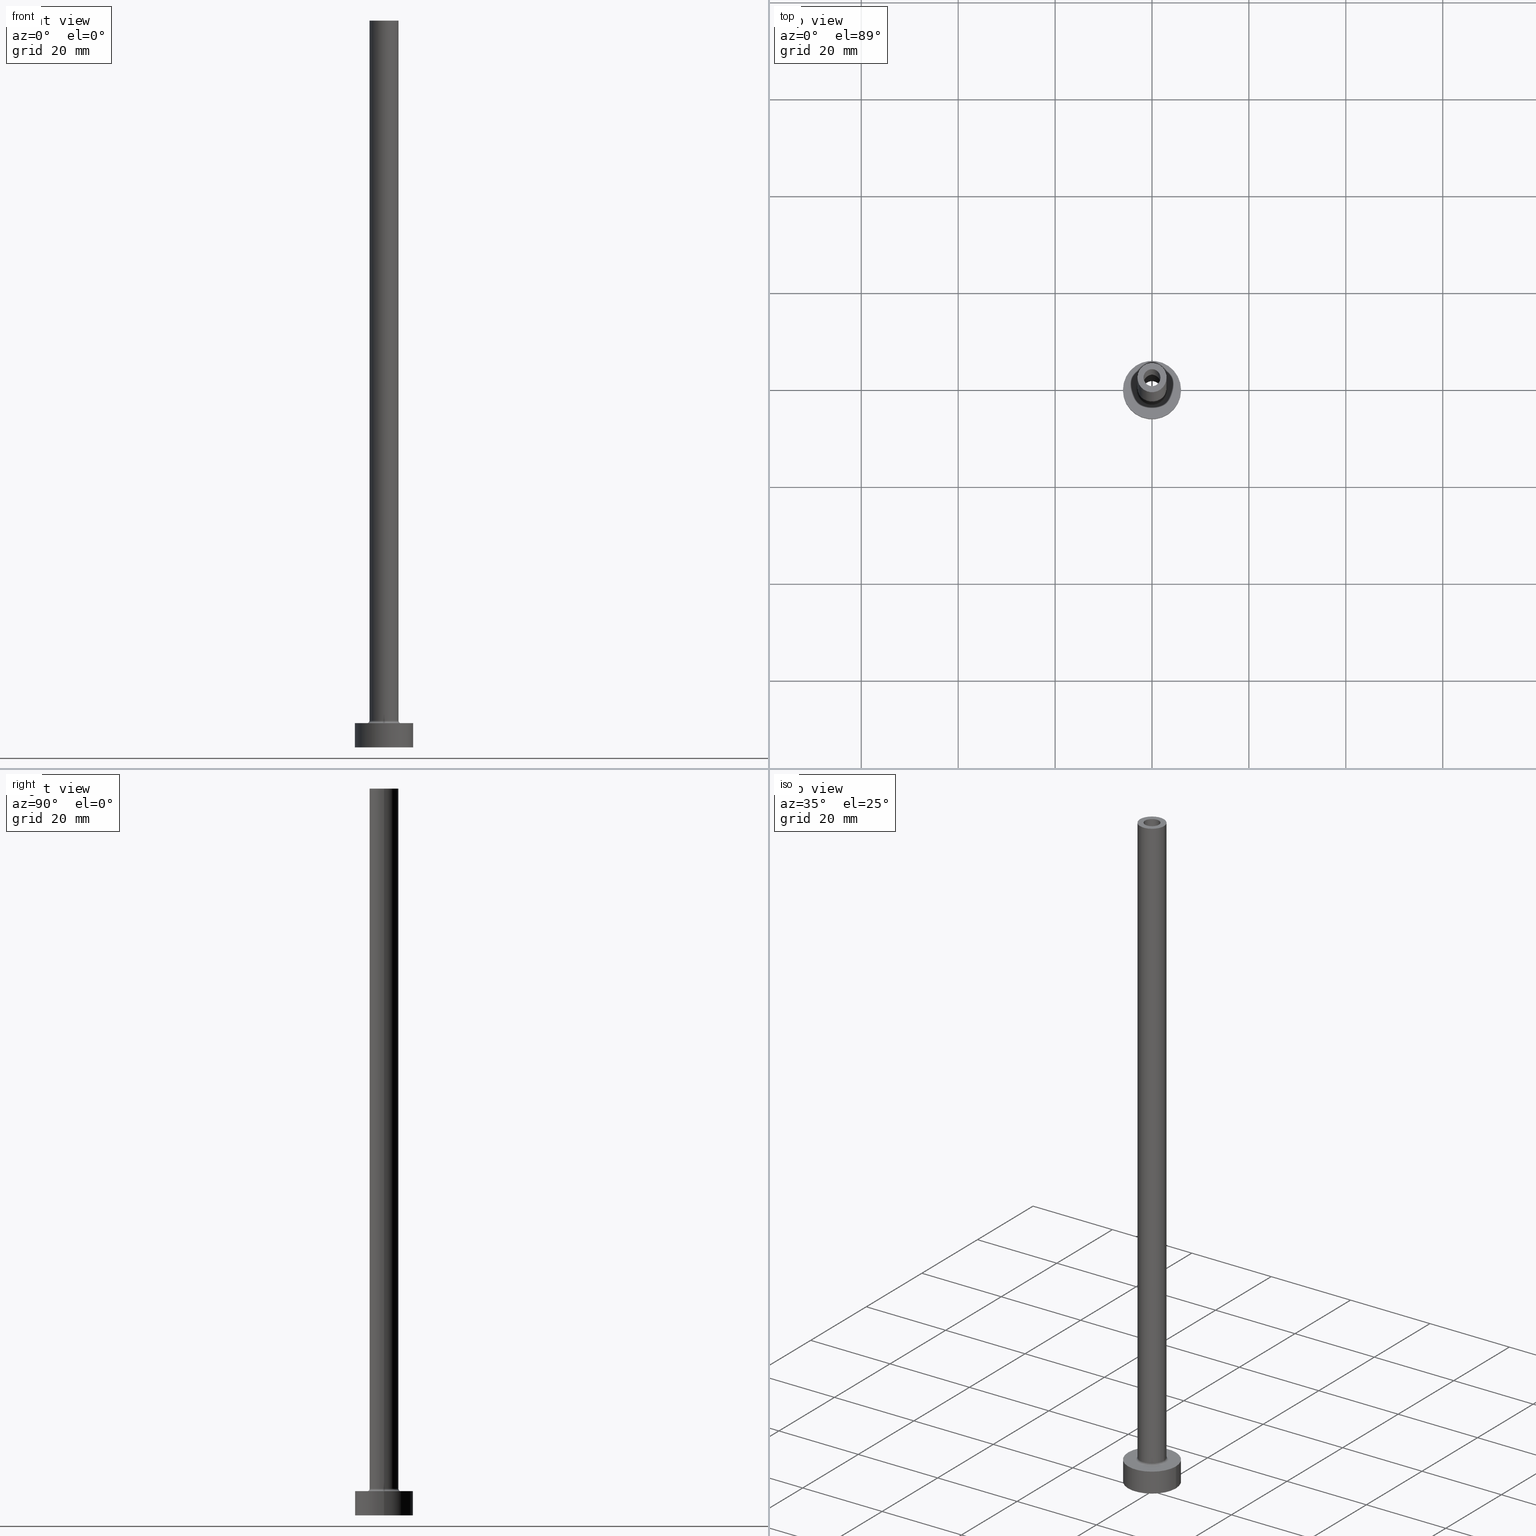
[diagram: canonical four-view strip — front | top / right | iso, engineering-drawing reading convention]
A machine part, canonical four-view strip (front | top / right | iso — engineering-drawing reading convention). The complete STEP part file that produces these views, byte-faithful:
ISO-10303-21;
HEADER;
FILE_DESCRIPTION (( 'STEP AP203' ),
    '1' );
FILE_NAME ('ba16.STEP',
    '2023-02-13T17:51:52',
    ( '' ),
    ( '' ),
    'SwSTEP 2.0',
    'SolidWorks 2019',
    '' );
FILE_SCHEMA (( 'CONFIG_CONTROL_DESIGN' ));
ENDSEC;

DATA;
#1 = FACE_OUTER_BOUND ( 'NONE', #265, .T. ) ;
#2 = DIRECTION ( 'NONE',  ( 0.000000000000000000, 0.000000000000000000, 1.000000000000000000 ) ) ;
#3 = DIRECTION ( 'NONE',  ( -1.000000000000000000, 0.000000000000000000, 0.000000000000000000 ) ) ;
#4 = FACE_OUTER_BOUND ( 'NONE', #275, .T. ) ;
#5 = LOCAL_TIME ( 18, 51, 52.00000000000000000, #157 ) ;
#6 = DIRECTION ( 'NONE',  ( 0.000000000000000000, 0.000000000000000000, 1.000000000000000000 ) ) ;
#7 = CARTESIAN_POINT ( 'NONE',  ( -1.899999999999999911, 0.000000000000000000, 0.000000000000000000 ) ) ;
#8 = EDGE_CURVE ( 'NONE', #438, #139, #441, .T. ) ;
#9 = CIRCLE ( 'NONE', #395, 3.000000000000000444 ) ;
#10 = DIRECTION ( 'NONE',  ( 0.000000000000000000, 0.000000000000000000, -1.000000000000000000 ) ) ;
#11 = DIRECTION ( 'NONE',  ( 0.000000000000000000, 0.000000000000000000, 1.000000000000000000 ) ) ;
#12 = CARTESIAN_POINT ( 'NONE',  ( 1.899999999999999911, 2.326828918379971365E-16, 105.0000000000000000 ) ) ;
#13 =( LENGTH_UNIT ( ) NAMED_UNIT ( * ) SI_UNIT ( .MILLI., .METRE. ) );
#14 = CC_DESIGN_SECURITY_CLASSIFICATION ( #189, ( #359 ) ) ;
#15 = PRODUCT ( 'ba16', 'ba16', '', ( #333 ) ) ;
#16 = CARTESIAN_POINT ( 'NONE',  ( 3.000000000000000444, 3.673940397442060361E-16, 150.0000000000000000 ) ) ;
#17 = PERSON_AND_ORGANIZATION_ROLE ( 'design_supplier' ) ;
#18 = CIRCLE ( 'NONE', #160, 0.4999999999999995559 ) ;
#19 = ORIENTED_EDGE ( 'NONE', *, *, #76, .T. ) ;
#20 = EDGE_CURVE ( 'NONE', #234, #193, #357, .T. ) ;
#21 = AXIS2_PLACEMENT_3D ( 'NONE', #149, #318, #73 ) ;
#22 = APPROVAL_ROLE ( '' ) ;
#23 = EDGE_CURVE ( 'NONE', #161, #64, #417, .T. ) ;
#24 = CALENDAR_DATE ( 2023, 13, 2 ) ;
#25 = ORIENTED_EDGE ( 'NONE', *, *, #135, .F. ) ;
#26 = AXIS2_PLACEMENT_3D ( 'NONE', #272, #314, #313 ) ;
#27 = CARTESIAN_POINT ( 'NONE',  ( 0.000000000000000000, 0.000000000000000000, 105.0000000000000000 ) ) ;
#28 = ORIENTED_EDGE ( 'NONE', *, *, #341, .F. ) ;
#29 = CYLINDRICAL_SURFACE ( 'NONE', #427, 3.000000000000000444 ) ;
#30 = ORIENTED_EDGE ( 'NONE', *, *, #285, .T. ) ;
#31 = DIRECTION ( 'NONE',  ( 0.000000000000000000, 0.000000000000000000, 1.000000000000000000 ) ) ;
#32 = ORIENTED_EDGE ( 'NONE', *, *, #260, .T. ) ;
#33 = FACE_OUTER_BOUND ( 'NONE', #258, .T. ) ;
#34 = CC_DESIGN_PERSON_AND_ORGANIZATION_ASSIGNMENT ( #225, #188, ( #291 ) ) ;
#35 = DIRECTION ( 'NONE',  ( 0.000000000000000000, 0.000000000000000000, -1.000000000000000000 ) ) ;
#36 = CARTESIAN_POINT ( 'NONE',  ( -3.000000000000000444, 0.000000000000000000, 5.500000000000005329 ) ) ;
#37 = CARTESIAN_POINT ( 'NONE',  ( 6.000000000000000888, 7.347880794884120722E-16, 5.000000000000000000 ) ) ;
#38 = APPROVAL_PERSON_ORGANIZATION ( #373, #191, #22 ) ;
#39 = CARTESIAN_POINT ( 'NONE',  ( 0.000000000000000000, 0.000000000000000000, 0.000000000000000000 ) ) ;
#40 = DIRECTION ( 'NONE',  ( 0.000000000000000000, 0.000000000000000000, -1.000000000000000000 ) ) ;
#41 = CARTESIAN_POINT ( 'NONE',  ( 0.000000000000000000, 0.000000000000000000, 105.0000000000000000 ) ) ;
#42 = EDGE_CURVE ( 'NONE', #139, #438, #267, .T. ) ;
#43 = APPROVAL_PERSON_ORGANIZATION ( #439, #454, #301 ) ;
#44 = CARTESIAN_POINT ( 'NONE',  ( 1.750000000000000000, 2.143131898507867804E-16, 150.0000000000000000 ) ) ;
#45 = CARTESIAN_POINT ( 'NONE',  ( 0.000000000000000000, 0.000000000000000000, 5.000000000000000000 ) ) ;
#46 = CIRCLE ( 'NONE', #184, 1.899999999999999911 ) ;
#47 = DIRECTION ( 'NONE',  ( 0.000000000000000000, 0.000000000000000000, -1.000000000000000000 ) ) ;
#48 = EDGE_CURVE ( 'NONE', #279, #162, #81, .T. ) ;
#49 = DIRECTION ( 'NONE',  ( -0.000000000000000000, -0.000000000000000000, -1.000000000000000000 ) ) ;
#50 = DIRECTION ( 'NONE',  ( 1.000000000000000000, 0.000000000000000000, 0.000000000000000000 ) ) ;
#51 = PERSON_AND_ORGANIZATION_ROLE ( 'creator' ) ;
#52 = ORIENTED_EDGE ( 'NONE', *, *, #400, .F. ) ;
#53 = AXIS2_PLACEMENT_3D ( 'NONE', #178, #2, #142 ) ;
#54 = EDGE_CURVE ( 'NONE', #161, #381, #325, .T. ) ;
#55 = CALENDAR_DATE ( 2023, 13, 2 ) ;
#56 = ADVANCED_FACE ( 'NONE', ( #85 ), #247, .F. ) ;
#57 = APPROVAL_DATE_TIME ( #257, #191 ) ;
#58 = SECURITY_CLASSIFICATION_LEVEL ( 'unclassified' ) ;
#59 = ORIENTED_EDGE ( 'NONE', *, *, #169, .F. ) ;
#60 = AXIS2_PLACEMENT_3D ( 'NONE', #421, #35, #134 ) ;
#61 = VERTEX_POINT ( 'NONE', #323 ) ;
#62 = ORIENTED_EDGE ( 'NONE', *, *, #336, .T. ) ;
#63 = CARTESIAN_POINT ( 'NONE',  ( -1.899999999999999911, 0.000000000000000000, 110.3740115370177648 ) ) ;
#64 = VERTEX_POINT ( 'NONE', #241 ) ;
#65 = DIRECTION ( 'NONE',  ( -0.000000000000000000, -0.000000000000000000, -1.000000000000000000 ) ) ;
#66 = ORIENTED_EDGE ( 'NONE', *, *, #425, .F. ) ;
#67 = ADVANCED_FACE ( 'NONE', ( #434, #1 ), #394, .F. ) ;
#68 = AXIS2_PLACEMENT_3D ( 'NONE', #397, #432, #363 ) ;
#69 = DIRECTION ( 'NONE',  ( 1.000000000000000000, 0.000000000000000000, 0.000000000000000000 ) ) ;
#70 = EDGE_LOOP ( 'NONE', ( #447, #97, #295, #28 ) ) ;
#71 = CARTESIAN_POINT ( 'NONE',  ( 0.000000000000000000, 0.000000000000000000, 5.500000000000005329 ) ) ;
#72 = ORIENTED_EDGE ( 'NONE', *, *, #443, .F. ) ;
#73 = DIRECTION ( 'NONE',  ( 1.000000000000000000, 0.000000000000000000, 0.000000000000000000 ) ) ;
#74 = CARTESIAN_POINT ( 'NONE',  ( -1.750000000000000000, 0.000000000000000000, 150.0000000000000000 ) ) ;
#75 = CIRCLE ( 'NONE', #334, 1.899999999999999911 ) ;
#76 = EDGE_CURVE ( 'NONE', #305, #316, #393, .T. ) ;
#77 = CC_DESIGN_PERSON_AND_ORGANIZATION_ASSIGNMENT ( #229, #51, ( #359 ) ) ;
#78 = CARTESIAN_POINT ( 'NONE',  ( 1.750000000000000000, 2.143131898507867804E-16, 105.0000000000000000 ) ) ;
#79 = FACE_OUTER_BOUND ( 'NONE', #165, .T. ) ;
#80 =( NAMED_UNIT ( * ) PLANE_ANGLE_UNIT ( ) SI_UNIT ( $, .RADIAN. ) );
#81 = LINE ( 'NONE', #422, #231 ) ;
#82 = DIRECTION ( 'NONE',  ( 1.000000000000000000, 0.000000000000000000, 0.000000000000000000 ) ) ;
#83 = CIRCLE ( 'NONE', #339, 1.750000000000000000 ) ;
#84 = AXIS2_PLACEMENT_3D ( 'NONE', #460, #129, #385 ) ;
#85 = FACE_OUTER_BOUND ( 'NONE', #408, .T. ) ;
#86 = DATE_AND_TIME ( #55, #96 ) ;
#87 = CALENDAR_DATE ( 2023, 13, 2 ) ;
#88 = EDGE_LOOP ( 'NONE', ( #90, #448 ) ) ;
#89 = COORDINATED_UNIVERSAL_TIME_OFFSET ( 1, 0, .AHEAD. ) ;
#90 = ORIENTED_EDGE ( 'NONE', *, *, #430, .F. ) ;
#91 = AXIS2_PLACEMENT_3D ( 'NONE', #105, #252, #143 ) ;
#92 = ADVANCED_FACE ( 'NONE', ( #79 ), #214, .F. ) ;
#93 = VECTOR ( 'NONE', #280, 1000.000000000000000 ) ;
#94 = PERSON_AND_ORGANIZATION ( #337, #219 ) ;
#95 = ORIENTED_EDGE ( 'NONE', *, *, #54, .T. ) ;
#96 = LOCAL_TIME ( 18, 51, 52.00000000000000000, #298 ) ;
#97 = ORIENTED_EDGE ( 'NONE', *, *, #376, .T. ) ;
#98 = CARTESIAN_POINT ( 'NONE',  ( 0.000000000000000000, 0.000000000000000000, 150.0000000000000000 ) ) ;
#99 = EDGE_LOOP ( 'NONE', ( #66, #172, #289, #25 ) ) ;
#100 = CARTESIAN_POINT ( 'NONE',  ( 0.000000000000000000, 0.000000000000000000, 150.0000000000000000 ) ) ;
#101 = EDGE_CURVE ( 'NONE', #266, #125, #243, .T. ) ;
#102 = CIRCLE ( 'NONE', #349, 1.899999999999999911 ) ;
#103 = VECTOR ( 'NONE', #290, 1000.000000000000000 ) ;
#104 = CARTESIAN_POINT ( 'NONE',  ( -6.000000000000000888, 0.000000000000000000, 5.000000000000000000 ) ) ;
#105 = CARTESIAN_POINT ( 'NONE',  ( 3.500000000000000444, 0.000000000000000000, 5.500000000000005329 ) ) ;
#106 = CARTESIAN_POINT ( 'NONE',  ( 0.000000000000000000, 0.000000000000000000, 5.000000000000000000 ) ) ;
#107 = CARTESIAN_POINT ( 'NONE',  ( 1.899999999999999911, 2.326828918379971365E-16, 110.3740115370177648 ) ) ;
#108 = DIRECTION ( 'NONE',  ( 1.000000000000000000, 0.000000000000000000, 0.000000000000000000 ) ) ;
#109 = AXIS2_PLACEMENT_3D ( 'NONE', #235, #163, #274 ) ;
#110 = DIRECTION ( 'NONE',  ( -0.000000000000000000, -0.000000000000000000, -1.000000000000000000 ) ) ;
#111 = CARTESIAN_POINT ( 'NONE',  ( 0.000000000000000000, 0.000000000000000000, 150.0000000000000000 ) ) ;
#112 = CYLINDRICAL_SURFACE ( 'NONE', #286, 3.000000000000000444 ) ;
#113 = CYLINDRICAL_SURFACE ( 'NONE', #201, 6.000000000000000888 ) ;
#114 = DIRECTION ( 'NONE',  ( -1.000000000000000000, 0.000000000000000000, 0.000000000000000000 ) ) ;
#115 = DIRECTION ( 'NONE',  ( 0.000000000000000000, 0.000000000000000000, 1.000000000000000000 ) ) ;
#116 = TOROIDAL_SURFACE ( 'NONE', #276, 3.500000000000000444, 0.5000000000000000000 ) ;
#117 = DATE_AND_TIME ( #24, #364 ) ;
#118 = ORIENTED_EDGE ( 'NONE', *, *, #169, .T. ) ;
#119 = PERSON_AND_ORGANIZATION_ROLE ( 'classification_officer' ) ;
#120 = ORIENTED_EDGE ( 'NONE', *, *, #246, .F. ) ;
#121 = ADVANCED_FACE ( 'NONE', ( #365 ), #112, .T. ) ;
#122 = CALENDAR_DATE ( 2023, 13, 2 ) ;
#123 = ORIENTED_EDGE ( 'NONE', *, *, #260, .F. ) ;
#124 = AXIS2_PLACEMENT_3D ( 'NONE', #200, #65, #310 ) ;
#125 = VERTEX_POINT ( 'NONE', #78 ) ;
#126 = PERSON_AND_ORGANIZATION_ROLE ( 'design_owner' ) ;
#127 = EDGE_LOOP ( 'NONE', ( #131, #199, #420, #459 ) ) ;
#128 = AXIS2_PLACEMENT_3D ( 'NONE', #39, #320, #398 ) ;
#129 = DIRECTION ( 'NONE',  ( 0.000000000000000000, 0.000000000000000000, 1.000000000000000000 ) ) ;
#130 = AXIS2_PLACEMENT_3D ( 'NONE', #208, #40, #251 ) ;
#131 = ORIENTED_EDGE ( 'NONE', *, *, #101, .F. ) ;
#132 = DIRECTION ( 'NONE',  ( 0.000000000000000000, 0.000000000000000000, -1.000000000000000000 ) ) ;
#133 = ORIENTED_EDGE ( 'NONE', *, *, #254, .F. ) ;
#134 = DIRECTION ( 'NONE',  ( -1.000000000000000000, 0.000000000000000000, 0.000000000000000000 ) ) ;
#135 = EDGE_CURVE ( 'NONE', #177, #193, #426, .T. ) ;
#136 = PRODUCT_RELATED_PRODUCT_CATEGORY ( 'detail', '', ( #15 ) ) ;
#137 = ORIENTED_EDGE ( 'NONE', *, *, #42, .T. ) ;
#138 = LINE ( 'NONE', #104, #93 ) ;
#139 = VERTEX_POINT ( 'NONE', #283 ) ;
#140 = CARTESIAN_POINT ( 'NONE',  ( -6.000000000000000888, 0.000000000000000000, 5.000000000000000000 ) ) ;
#141 = DIRECTION ( 'NONE',  ( 0.000000000000000000, 0.000000000000000000, 1.000000000000000000 ) ) ;
#142 = DIRECTION ( 'NONE',  ( 1.000000000000000000, 0.000000000000000000, 0.000000000000000000 ) ) ;
#143 = DIRECTION ( 'NONE',  ( 0.000000000000000000, 0.000000000000000000, -1.000000000000000000 ) ) ;
#144 = DIRECTION ( 'NONE',  ( -0.000000000000000000, -0.000000000000000000, -1.000000000000000000 ) ) ;
#145 = CARTESIAN_POINT ( 'NONE',  ( 0.000000000000000000, 0.000000000000000000, 0.000000000000000000 ) ) ;
#146 = VECTOR ( 'NONE', #371, 1000.000000000000000 ) ;
#147 = EDGE_LOOP ( 'NONE', ( #312, #62 ) ) ;
#148 = CARTESIAN_POINT ( 'NONE',  ( -1.750000000000000000, 0.000000000000000000, 150.0000000000000000 ) ) ;
#149 = CARTESIAN_POINT ( 'NONE',  ( 0.000000000000000000, 0.000000000000000000, 5.000000000000000000 ) ) ;
#150 = CARTESIAN_POINT ( 'NONE',  ( 3.000000000000000444, 3.673940397442060361E-16, 150.0000000000000000 ) ) ;
#151 = CLOSED_SHELL ( 'NONE', ( #388, #56, #198, #263, #414, #352, #358, #67, #121, #269, #183, #92, #347, #233 ) ) ;
#152 = CARTESIAN_POINT ( 'NONE',  ( 3.500000000000000444, 0.000000000000000000, 5.000000000000002665 ) ) ;
#153 = DATE_TIME_ROLE ( 'classification_date' ) ;
#154 = EDGE_CURVE ( 'NONE', #64, #161, #102, .T. ) ;
#155 = DIRECTION ( 'NONE',  ( 0.000000000000000000, 0.000000000000000000, 1.000000000000000000 ) ) ;
#156 = CC_DESIGN_DATE_AND_TIME_ASSIGNMENT ( #86, #405, ( #291 ) ) ;
#157 = COORDINATED_UNIVERSAL_TIME_OFFSET ( 1, 0, .AHEAD. ) ;
#158 = EDGE_LOOP ( 'NONE', ( #120, #118, #30, #207 ) ) ;
#159 = TOROIDAL_SURFACE ( 'NONE', #218, 3.500000000000000444, 0.5000000000000000000 ) ;
#160 = AXIS2_PLACEMENT_3D ( 'NONE', #322, #402, #180 ) ;
#161 = VERTEX_POINT ( 'NONE', #12 ) ;
#162 = VERTEX_POINT ( 'NONE', #36 ) ;
#163 = DIRECTION ( 'NONE',  ( 0.000000000000000000, 0.000000000000000000, 1.000000000000000000 ) ) ;
#164 = AXIS2_PLACEMENT_3D ( 'NONE', #281, #328, #114 ) ;
#165 = EDGE_LOOP ( 'NONE', ( #168, #382, #268, #196 ) ) ;
#166 = DIRECTION ( 'NONE',  ( 1.000000000000000000, 0.000000000000000000, 0.000000000000000000 ) ) ;
#167 = CIRCLE ( 'NONE', #124, 3.500000000000000444 ) ;
#168 = ORIENTED_EDGE ( 'NONE', *, *, #54, .F. ) ;
#169 = EDGE_CURVE ( 'NONE', #404, #177, #175, .T. ) ;
#170 = CARTESIAN_POINT ( 'NONE',  ( 6.000000000000000888, 7.347880794884120722E-16, 5.000000000000000000 ) ) ;
#171 = APPROVAL ( #442, 'NEUR�EN�' ) ;
#172 = ORIENTED_EDGE ( 'NONE', *, *, #411, .T. ) ;
#173 = DIRECTION ( 'NONE',  ( 1.000000000000000000, 0.000000000000000000, -0.000000000000000000 ) ) ;
#174 = APPROVAL_DATE_TIME ( #117, #454 ) ;
#175 = LINE ( 'NONE', #16, #368 ) ;
#176 = FACE_BOUND ( 'NONE', #230, .T. ) ;
#177 = VERTEX_POINT ( 'NONE', #187 ) ;
#178 = CARTESIAN_POINT ( 'NONE',  ( 0.000000000000000000, 0.000000000000000000, 150.0000000000000000 ) ) ;
#179 = DIRECTION ( 'NONE',  ( -1.000000000000000000, 0.000000000000000000, 0.000000000000000000 ) ) ;
#180 = DIRECTION ( 'NONE',  ( -1.000000000000000000, 1.224646799147354440E-16, 0.000000000000000000 ) ) ;
#181 = ORIENTED_EDGE ( 'NONE', *, *, #135, .T. ) ;
#182 = LINE ( 'NONE', #37, #103 ) ;
#183 = ADVANCED_FACE ( 'NONE', ( #436 ), #159, .F. ) ;
#184 = AXIS2_PLACEMENT_3D ( 'NONE', #429, #401, #82 ) ;
#185 = DIRECTION ( 'NONE',  ( 1.000000000000000000, 0.000000000000000000, 0.000000000000000000 ) ) ;
#186 = CARTESIAN_POINT ( 'NONE',  ( 6.000000000000000888, 7.347880794884120722E-16, 0.000000000000000000 ) ) ;
#187 = CARTESIAN_POINT ( 'NONE',  ( 3.000000000000000444, 3.673940397442060361E-16, 5.500000000000005329 ) ) ;
#188 = PERSON_AND_ORGANIZATION_ROLE ( 'creator' ) ;
#189 = SECURITY_CLASSIFICATION ( '', '', #58 ) ;
#190 = AXIS2_PLACEMENT_3D ( 'NONE', #41, #362, #396 ) ;
#191 = APPROVAL ( #437, 'NEUR�EN�' ) ;
#192 = CALENDAR_DATE ( 2023, 13, 2 ) ;
#193 = VERTEX_POINT ( 'NONE', #152 ) ;
#194 = COORDINATED_UNIVERSAL_TIME_OFFSET ( 1, 0, .AHEAD. ) ;
#195 = CC_DESIGN_PERSON_AND_ORGANIZATION_ASSIGNMENT ( #94, #126, ( #15 ) ) ;
#196 = ORIENTED_EDGE ( 'NONE', *, *, #451, .T. ) ;
#197 = PLANE ( 'NONE',  #210 ) ;
#198 = ADVANCED_FACE ( 'NONE', ( #293 ), #116, .F. ) ;
#199 = ORIENTED_EDGE ( 'NONE', *, *, #215, .T. ) ;
#200 = CARTESIAN_POINT ( 'NONE',  ( 0.000000000000000000, 0.000000000000000000, 5.000000000000000000 ) ) ;
#201 = AXIS2_PLACEMENT_3D ( 'NONE', #245, #248, #282 ) ;
#202 = ORIENTED_EDGE ( 'NONE', *, *, #300, .T. ) ;
#203 = DIRECTION ( 'NONE',  ( -0.000000000000000000, -0.000000000000000000, -1.000000000000000000 ) ) ;
#204 = EDGE_LOOP ( 'NONE', ( #389, #344, #181, #237 ) ) ;
#205 = CARTESIAN_POINT ( 'NONE',  ( 0.000000000000000000, 0.000000000000000000, 0.000000000000000000 ) ) ;
#206 = AXIS2_PLACEMENT_3D ( 'NONE', #212, #10, #179 ) ;
#207 = ORIENTED_EDGE ( 'NONE', *, *, #48, .F. ) ;
#208 = CARTESIAN_POINT ( 'NONE',  ( 0.000000000000000000, 0.000000000000000000, 150.0000000000000000 ) ) ;
#209 = CARTESIAN_POINT ( 'NONE',  ( 0.000000000000000000, 0.000000000000000000, 0.000000000000000000 ) ) ;
#210 = AXIS2_PLACEMENT_3D ( 'NONE', #98, #449, #173 ) ;
#211 = CYLINDRICAL_SURFACE ( 'NONE', #271, 6.000000000000000888 ) ;
#212 = CARTESIAN_POINT ( 'NONE',  ( 0.000000000000000000, 0.000000000000000000, 110.3740115370177648 ) ) ;
#213 = DIRECTION ( 'NONE',  ( 1.000000000000000000, 0.000000000000000000, -0.000000000000000000 ) ) ;
#214 = CYLINDRICAL_SURFACE ( 'NONE', #164, 1.899999999999999911 ) ;
#215 = EDGE_CURVE ( 'NONE', #266, #351, #83, .T. ) ;
#216 = CARTESIAN_POINT ( 'NONE',  ( 0.000000000000000000, 0.000000000000000000, 105.0000000000000000 ) ) ;
#217 = DIRECTION ( 'NONE',  ( 0.000000000000000000, 0.000000000000000000, 1.000000000000000000 ) ) ;
#218 = AXIS2_PLACEMENT_3D ( 'NONE', #256, #330, #403 ) ;
#219 = ORGANIZATION ( 'NEUR�EN�', 'NEUR�EN�', '' ) ;
#220 = CARTESIAN_POINT ( 'NONE',  ( 0.000000000000000000, 0.000000000000000000, 5.000000000000000000 ) ) ;
#221 = APPROVAL_ROLE ( '' ) ;
#222 = CC_DESIGN_DATE_AND_TIME_ASSIGNMENT ( #297, #153, ( #189 ) ) ;
#223 =( NAMED_UNIT ( * ) SI_UNIT ( $, .STERADIAN. ) SOLID_ANGLE_UNIT ( ) );
#224 = ORIENTED_EDGE ( 'NONE', *, *, #42, .F. ) ;
#225 = PERSON_AND_ORGANIZATION ( #337, #219 ) ;
#226 = CIRCLE ( 'NONE', #109, 6.000000000000000888 ) ;
#227 = ADVANCED_BREP_SHAPE_REPRESENTATION ( 'ba16', ( #380, #446 ), #340 ) ;
#228 = PERSON_AND_ORGANIZATION ( #337, #219 ) ;
#229 = PERSON_AND_ORGANIZATION ( #337, #219 ) ;
#230 = EDGE_LOOP ( 'NONE', ( #202, #386 ) ) ;
#231 = VECTOR ( 'NONE', #110, 1000.000000000000000 ) ;
#232 = DIRECTION ( 'NONE',  ( 1.000000000000000000, 0.000000000000000000, -0.000000000000000000 ) ) ;
#233 = ADVANCED_FACE ( 'NONE', ( #390 ), #413, .F. ) ;
#234 = VERTEX_POINT ( 'NONE', #348 ) ;
#235 = CARTESIAN_POINT ( 'NONE',  ( 0.000000000000000000, 0.000000000000000000, 5.000000000000000000 ) ) ;
#236 = LOCAL_TIME ( 18, 51, 52.00000000000000000, #194 ) ;
#237 = ORIENTED_EDGE ( 'NONE', *, *, #20, .F. ) ;
#238 = ORIENTED_EDGE ( 'NONE', *, *, #400, .T. ) ;
#239 = ORIENTED_EDGE ( 'NONE', *, *, #425, .T. ) ;
#240 = FACE_OUTER_BOUND ( 'NONE', #391, .T. ) ;
#241 = CARTESIAN_POINT ( 'NONE',  ( -1.899999999999999911, 0.000000000000000000, 105.0000000000000000 ) ) ;
#242 = DIRECTION ( 'NONE',  ( 1.000000000000000000, 0.000000000000000000, 0.000000000000000000 ) ) ;
#243 = LINE ( 'NONE', #44, #374 ) ;
#244 = CIRCLE ( 'NONE', #84, 3.000000000000000444 ) ;
#245 = CARTESIAN_POINT ( 'NONE',  ( 0.000000000000000000, 0.000000000000000000, 5.000000000000000000 ) ) ;
#246 = EDGE_CURVE ( 'NONE', #404, #279, #461, .T. ) ;
#247 = CYLINDRICAL_SURFACE ( 'NONE', #206, 1.899999999999999911 ) ;
#248 = DIRECTION ( 'NONE',  ( -0.000000000000000000, -0.000000000000000000, -1.000000000000000000 ) ) ;
#249 = CARTESIAN_POINT ( 'NONE',  ( 0.000000000000000000, 0.000000000000000000, 150.0000000000000000 ) ) ;
#250 = AXIS2_PLACEMENT_3D ( 'NONE', #145, #141, #428 ) ;
#251 = DIRECTION ( 'NONE',  ( -1.000000000000000000, 0.000000000000000000, 0.000000000000000000 ) ) ;
#252 = DIRECTION ( 'NONE',  ( 0.000000000000000000, -1.000000000000000000, 0.000000000000000000 ) ) ;
#253 = DESIGN_CONTEXT ( 'detailed design', #332, 'design' ) ;
#254 = EDGE_CURVE ( 'NONE', #381, #457, #75, .T. ) ;
#255 = CARTESIAN_POINT ( 'NONE',  ( 1.899999999999999911, 2.326828918379971365E-16, 0.000000000000000000 ) ) ;
#256 = CARTESIAN_POINT ( 'NONE',  ( 0.000000000000000000, 0.000000000000000000, 5.500000000000005329 ) ) ;
#257 = DATE_AND_TIME ( #87, #296 ) ;
#258 = EDGE_LOOP ( 'NONE', ( #238, #354 ) ) ;
#259 = ORIENTED_EDGE ( 'NONE', *, *, #8, .F. ) ;
#260 = EDGE_CURVE ( 'NONE', #316, #305, #226, .T. ) ;
#261 = DATE_AND_TIME ( #122, #236 ) ;
#262 = CIRCLE ( 'NONE', #68, 1.750000000000000000 ) ;
#263 = ADVANCED_FACE ( 'NONE', ( #453 ), #29, .T. ) ;
#264 = APPLICATION_PROTOCOL_DEFINITION ( 'international standard', 'config_control_design', 1994, #307 ) ;
#265 = EDGE_LOOP ( 'NONE', ( #224, #259 ) ) ;
#266 = VERTEX_POINT ( 'NONE', #343 ) ;
#267 = CIRCLE ( 'NONE', #433, 6.000000000000000888 ) ;
#268 = ORIENTED_EDGE ( 'NONE', *, *, #321, .T. ) ;
#269 = ADVANCED_FACE ( 'NONE', ( #353, #33 ), #197, .T. ) ;
#270 = LINE ( 'NONE', #63, #302 ) ;
#271 = AXIS2_PLACEMENT_3D ( 'NONE', #45, #144, #329 ) ;
#272 = CARTESIAN_POINT ( 'NONE',  ( 0.000000000000000000, 0.000000000000000000, 105.0000000000000000 ) ) ;
#273 = ORIENTED_EDGE ( 'NONE', *, *, #101, .T. ) ;
#274 = DIRECTION ( 'NONE',  ( 1.000000000000000000, 0.000000000000000000, 0.000000000000000000 ) ) ;
#275 = EDGE_LOOP ( 'NONE', ( #415, #123, #440, #137 ) ) ;
#276 = AXIS2_PLACEMENT_3D ( 'NONE', #71, #355, #416 ) ;
#277 = CIRCLE ( 'NONE', #311, 1.750000000000000000 ) ;
#278 = CC_DESIGN_PERSON_AND_ORGANIZATION_ASSIGNMENT ( #294, #17, ( #359 ) ) ;
#279 = VERTEX_POINT ( 'NONE', #387 ) ;
#280 = DIRECTION ( 'NONE',  ( -0.000000000000000000, -0.000000000000000000, -1.000000000000000000 ) ) ;
#281 = CARTESIAN_POINT ( 'NONE',  ( 0.000000000000000000, 0.000000000000000000, 110.3740115370177648 ) ) ;
#282 = DIRECTION ( 'NONE',  ( -1.000000000000000000, 0.000000000000000000, 0.000000000000000000 ) ) ;
#283 = CARTESIAN_POINT ( 'NONE',  ( -6.000000000000000888, 0.000000000000000000, 0.000000000000000000 ) ) ;
#284 = FACE_OUTER_BOUND ( 'NONE', #70, .T. ) ;
#285 = EDGE_CURVE ( 'NONE', #177, #162, #244, .T. ) ;
#286 = AXIS2_PLACEMENT_3D ( 'NONE', #249, #399, #3 ) ;
#287 = EDGE_LOOP ( 'NONE', ( #32, #19 ) ) ;
#288 = CIRCLE ( 'NONE', #26, 1.750000000000000000 ) ;
#289 = ORIENTED_EDGE ( 'NONE', *, *, #300, .F. ) ;
#290 = DIRECTION ( 'NONE',  ( -0.000000000000000000, -0.000000000000000000, -1.000000000000000000 ) ) ;
#291 = PRODUCT_DEFINITION ( 'NEZN�M�', '', #359, #253 ) ;
#292 = DIRECTION ( 'NONE',  ( 0.000000000000000000, 0.000000000000000000, -1.000000000000000000 ) ) ;
#293 = FACE_OUTER_BOUND ( 'NONE', #99, .T. ) ;
#294 = PERSON_AND_ORGANIZATION ( #337, #219 ) ;
#295 = ORIENTED_EDGE ( 'NONE', *, *, #8, .T. ) ;
#296 = LOCAL_TIME ( 18, 51, 52.00000000000000000, #89 ) ;
#297 = DATE_AND_TIME ( #192, #5 ) ;
#298 = COORDINATED_UNIVERSAL_TIME_OFFSET ( 1, 0, .AHEAD. ) ;
#299 = CC_DESIGN_APPROVAL ( #171, ( #359 ) ) ;
#300 = EDGE_CURVE ( 'NONE', #193, #234, #167, .T. ) ;
#301 = APPROVAL_ROLE ( '' ) ;
#302 = VECTOR ( 'NONE', #132, 1000.000000000000000 ) ;
#303 = CARTESIAN_POINT ( 'NONE',  ( 0.000000000000000000, 0.000000000000000000, 0.000000000000000000 ) ) ;
#304 = CC_DESIGN_PERSON_AND_ORGANIZATION_ASSIGNMENT ( #228, #119, ( #189 ) ) ;
#305 = VERTEX_POINT ( 'NONE', #170 ) ;
#306 = DIRECTION ( 'NONE',  ( 0.000000000000000000, 0.000000000000000000, 1.000000000000000000 ) ) ;
#307 = APPLICATION_CONTEXT ( 'configuration controlled 3d designs of mechanical parts and assemblies' ) ;
#308 = AXIS2_PLACEMENT_3D ( 'NONE', #220, #6, #431 ) ;
#309 = ORIENTED_EDGE ( 'NONE', *, *, #154, .T. ) ;
#310 = DIRECTION ( 'NONE',  ( 1.000000000000000000, 0.000000000000000000, 0.000000000000000000 ) ) ;
#311 = AXIS2_PLACEMENT_3D ( 'NONE', #111, #115, #242 ) ;
#312 = ORIENTED_EDGE ( 'NONE', *, *, #443, .T. ) ;
#313 = DIRECTION ( 'NONE',  ( 1.000000000000000000, 0.000000000000000000, 0.000000000000000000 ) ) ;
#314 = DIRECTION ( 'NONE',  ( 0.000000000000000000, 0.000000000000000000, 1.000000000000000000 ) ) ;
#315 = SHAPE_DEFINITION_REPRESENTATION ( #335, #227 ) ;
#316 = VERTEX_POINT ( 'NONE', #140 ) ;
#317 = DIRECTION ( 'NONE',  ( -1.000000000000000000, 0.000000000000000000, 0.000000000000000000 ) ) ;
#318 = DIRECTION ( 'NONE',  ( -0.000000000000000000, -0.000000000000000000, -1.000000000000000000 ) ) ;
#319 = FACE_OUTER_BOUND ( 'NONE', #287, .T. ) ;
#320 = DIRECTION ( 'NONE',  ( 0.000000000000000000, 0.000000000000000000, 1.000000000000000000 ) ) ;
#321 = EDGE_CURVE ( 'NONE', #64, #457, #270, .T. ) ;
#322 = CARTESIAN_POINT ( 'NONE',  ( -3.500000000000000444, 4.286263797015737088E-16, 5.500000000000005329 ) ) ;
#323 = CARTESIAN_POINT ( 'NONE',  ( -1.750000000000000000, 0.000000000000000000, 105.0000000000000000 ) ) ;
#324 = CARTESIAN_POINT ( 'NONE',  ( 0.000000000000000000, 0.000000000000000000, 5.500000000000005329 ) ) ;
#325 = LINE ( 'NONE', #107, #409 ) ;
#326 = AXIS2_PLACEMENT_3D ( 'NONE', #27, #410, #232 ) ;
#327 = FACE_OUTER_BOUND ( 'NONE', #346, .T. ) ;
#328 = DIRECTION ( 'NONE',  ( 0.000000000000000000, 0.000000000000000000, -1.000000000000000000 ) ) ;
#329 = DIRECTION ( 'NONE',  ( -1.000000000000000000, 0.000000000000000000, 0.000000000000000000 ) ) ;
#330 = DIRECTION ( 'NONE',  ( 0.000000000000000000, 0.000000000000000000, 1.000000000000000000 ) ) ;
#331 = PERSON_AND_ORGANIZATION ( #337, #219 ) ;
#332 = APPLICATION_CONTEXT ( 'configuration controlled 3d designs of mechanical parts and assemblies' ) ;
#333 = MECHANICAL_CONTEXT ( 'NONE', #307, 'mechanical' ) ;
#334 = AXIS2_PLACEMENT_3D ( 'NONE', #205, #345, #456 ) ;
#335 = PRODUCT_DEFINITION_SHAPE ( 'NONE', 'NONE',  #291 ) ;
#336 = EDGE_CURVE ( 'NONE', #125, #61, #288, .T. ) ;
#337 = PERSON ( 'NEUR�EN�', 'NEUR�EN�', 'NEUR�EN�', ('NEUR�EN�'), ('NEUR�EN�'), ('NEUR�EN�') ) ;
#338 = APPROVAL_STATUS ( 'not_yet_approved' ) ;
#339 = AXIS2_PLACEMENT_3D ( 'NONE', #372, #31, #166 ) ;
#340 =( GEOMETRIC_REPRESENTATION_CONTEXT ( 3 ) GLOBAL_UNCERTAINTY_ASSIGNED_CONTEXT ( ( #435 ) ) GLOBAL_UNIT_ASSIGNED_CONTEXT ( ( #13, #80, #223 ) ) REPRESENTATION_CONTEXT ( 'NONE', 'WORKASPACE' ) );
#341 = EDGE_CURVE ( 'NONE', #316, #139, #138, .T. ) ;
#342 = ORIENTED_EDGE ( 'NONE', *, *, #23, .F. ) ;
#343 = CARTESIAN_POINT ( 'NONE',  ( 1.750000000000000000, 2.143131898507867804E-16, 150.0000000000000000 ) ) ;
#344 = ORIENTED_EDGE ( 'NONE', *, *, #285, .F. ) ;
#345 = DIRECTION ( 'NONE',  ( -0.000000000000000000, -0.000000000000000000, -1.000000000000000000 ) ) ;
#346 = EDGE_LOOP ( 'NONE', ( #418, #273, #72, #384 ) ) ;
#347 = ADVANCED_FACE ( 'NONE', ( #419, #240 ), #392, .F. ) ;
#348 = CARTESIAN_POINT ( 'NONE',  ( -3.500000000000000444, 4.286263797015737088E-16, 5.000000000000002665 ) ) ;
#349 = AXIS2_PLACEMENT_3D ( 'NONE', #216, #423, #185 ) ;
#350 = AXIS2_PLACEMENT_3D ( 'NONE', #106, #217, #213 ) ;
#351 = VERTEX_POINT ( 'NONE', #74 ) ;
#352 = ADVANCED_FACE ( 'NONE', ( #4 ), #211, .T. ) ;
#353 = FACE_BOUND ( 'NONE', #88, .T. ) ;
#354 = ORIENTED_EDGE ( 'NONE', *, *, #246, .T. ) ;
#355 = DIRECTION ( 'NONE',  ( 0.000000000000000000, 0.000000000000000000, 1.000000000000000000 ) ) ;
#356 = CC_DESIGN_APPROVAL ( #454, ( #189 ) ) ;
#357 = CIRCLE ( 'NONE', #21, 3.500000000000000444 ) ;
#358 = ADVANCED_FACE ( 'NONE', ( #176, #319 ), #424, .T. ) ;
#359 = PRODUCT_DEFINITION_FORMATION_WITH_SPECIFIED_SOURCE ( 'LIBOVOLN�', '', #15, .NOT_KNOWN. ) ;
#360 = DIRECTION ( 'NONE',  ( 1.000000000000000000, 0.000000000000000000, 0.000000000000000000 ) ) ;
#361 = CYLINDRICAL_SURFACE ( 'NONE', #130, 1.750000000000000000 ) ;
#362 = DIRECTION ( 'NONE',  ( 0.000000000000000000, 0.000000000000000000, 1.000000000000000000 ) ) ;
#363 = DIRECTION ( 'NONE',  ( 1.000000000000000000, 0.000000000000000000, 0.000000000000000000 ) ) ;
#364 = LOCAL_TIME ( 18, 51, 52.00000000000000000, #444 ) ;
#365 = FACE_OUTER_BOUND ( 'NONE', #455, .T. ) ;
#366 = EDGE_CURVE ( 'NONE', #351, #61, #367, .T. ) ;
#367 = LINE ( 'NONE', #148, #146 ) ;
#368 = VECTOR ( 'NONE', #49, 1000.000000000000000 ) ;
#369 = DIRECTION ( 'NONE',  ( 0.000000000000000000, 0.000000000000000000, 1.000000000000000000 ) ) ;
#370 = CIRCLE ( 'NONE', #53, 3.000000000000000444 ) ;
#371 = DIRECTION ( 'NONE',  ( 0.000000000000000000, 0.000000000000000000, -1.000000000000000000 ) ) ;
#372 = CARTESIAN_POINT ( 'NONE',  ( 0.000000000000000000, 0.000000000000000000, 150.0000000000000000 ) ) ;
#373 = PERSON_AND_ORGANIZATION ( #337, #219 ) ;
#374 = VECTOR ( 'NONE', #47, 1000.000000000000000 ) ;
#375 = ORIENTED_EDGE ( 'NONE', *, *, #321, .F. ) ;
#376 = EDGE_CURVE ( 'NONE', #305, #438, #182, .T. ) ;
#377 = APPLICATION_PROTOCOL_DEFINITION ( 'international standard', 'config_control_design', 1994, #332 ) ;
#378 = EDGE_LOOP ( 'NONE', ( #406, #133 ) ) ;
#379 = CC_DESIGN_APPROVAL ( #191, ( #291 ) ) ;
#380 = MANIFOLD_SOLID_BREP ( 'Odebrat vysunut�m4', #151 ) ;
#381 = VERTEX_POINT ( 'NONE', #255 ) ;
#382 = ORIENTED_EDGE ( 'NONE', *, *, #23, .T. ) ;
#383 = AXIS2_PLACEMENT_3D ( 'NONE', #100, #306, #69 ) ;
#384 = ORIENTED_EDGE ( 'NONE', *, *, #366, .F. ) ;
#385 = DIRECTION ( 'NONE',  ( 1.000000000000000000, 0.000000000000000000, 0.000000000000000000 ) ) ;
#386 = ORIENTED_EDGE ( 'NONE', *, *, #20, .T. ) ;
#387 = CARTESIAN_POINT ( 'NONE',  ( -3.000000000000000444, 0.000000000000000000, 150.0000000000000000 ) ) ;
#388 = ADVANCED_FACE ( 'NONE', ( #327 ), #361, .F. ) ;
#389 = ORIENTED_EDGE ( 'NONE', *, *, #411, .F. ) ;
#390 = FACE_OUTER_BOUND ( 'NONE', #127, .T. ) ;
#391 = EDGE_LOOP ( 'NONE', ( #445, #342 ) ) ;
#392 = PLANE ( 'NONE',  #326 ) ;
#393 = CIRCLE ( 'NONE', #308, 6.000000000000000888 ) ;
#394 = PLANE ( 'NONE',  #128 ) ;
#395 = AXIS2_PLACEMENT_3D ( 'NONE', #324, #11, #108 ) ;
#396 = DIRECTION ( 'NONE',  ( 1.000000000000000000, 0.000000000000000000, 0.000000000000000000 ) ) ;
#397 = CARTESIAN_POINT ( 'NONE',  ( 0.000000000000000000, 0.000000000000000000, 105.0000000000000000 ) ) ;
#398 = DIRECTION ( 'NONE',  ( 1.000000000000000000, 0.000000000000000000, -0.000000000000000000 ) ) ;
#399 = DIRECTION ( 'NONE',  ( -0.000000000000000000, -0.000000000000000000, -1.000000000000000000 ) ) ;
#400 = EDGE_CURVE ( 'NONE', #279, #404, #370, .T. ) ;
#401 = DIRECTION ( 'NONE',  ( -0.000000000000000000, -0.000000000000000000, -1.000000000000000000 ) ) ;
#402 = DIRECTION ( 'NONE',  ( 1.224646799147353207E-16, 1.000000000000000000, -0.000000000000000000 ) ) ;
#403 = DIRECTION ( 'NONE',  ( 1.000000000000000000, 0.000000000000000000, 0.000000000000000000 ) ) ;
#404 = VERTEX_POINT ( 'NONE', #150 ) ;
#405 = DATE_TIME_ROLE ( 'creation_date' ) ;
#406 = ORIENTED_EDGE ( 'NONE', *, *, #451, .F. ) ;
#407 = APPROVAL_DATE_TIME ( #261, #171 ) ;
#408 = EDGE_LOOP ( 'NONE', ( #309, #95, #412, #375 ) ) ;
#409 = VECTOR ( 'NONE', #292, 1000.000000000000000 ) ;
#410 = DIRECTION ( 'NONE',  ( 0.000000000000000000, 0.000000000000000000, 1.000000000000000000 ) ) ;
#411 = EDGE_CURVE ( 'NONE', #162, #234, #18, .T. ) ;
#412 = ORIENTED_EDGE ( 'NONE', *, *, #254, .T. ) ;
#413 = CYLINDRICAL_SURFACE ( 'NONE', #60, 1.750000000000000000 ) ;
#414 = ADVANCED_FACE ( 'NONE', ( #284 ), #113, .T. ) ;
#415 = ORIENTED_EDGE ( 'NONE', *, *, #376, .F. ) ;
#416 = DIRECTION ( 'NONE',  ( 1.000000000000000000, 0.000000000000000000, 0.000000000000000000 ) ) ;
#417 = CIRCLE ( 'NONE', #190, 1.899999999999999911 ) ;
#418 = ORIENTED_EDGE ( 'NONE', *, *, #430, .T. ) ;
#419 = FACE_BOUND ( 'NONE', #147, .T. ) ;
#420 = ORIENTED_EDGE ( 'NONE', *, *, #366, .T. ) ;
#421 = CARTESIAN_POINT ( 'NONE',  ( 0.000000000000000000, 0.000000000000000000, 150.0000000000000000 ) ) ;
#422 = CARTESIAN_POINT ( 'NONE',  ( -3.000000000000000444, 0.000000000000000000, 150.0000000000000000 ) ) ;
#423 = DIRECTION ( 'NONE',  ( 0.000000000000000000, 0.000000000000000000, 1.000000000000000000 ) ) ;
#424 = PLANE ( 'NONE',  #350 ) ;
#425 = EDGE_CURVE ( 'NONE', #162, #177, #9, .T. ) ;
#426 = CIRCLE ( 'NONE', #91, 0.5000000000000004441 ) ;
#427 = AXIS2_PLACEMENT_3D ( 'NONE', #458, #203, #317 ) ;
#428 = DIRECTION ( 'NONE',  ( 1.000000000000000000, 0.000000000000000000, 0.000000000000000000 ) ) ;
#429 = CARTESIAN_POINT ( 'NONE',  ( 0.000000000000000000, 0.000000000000000000, 0.000000000000000000 ) ) ;
#430 = EDGE_CURVE ( 'NONE', #351, #266, #277, .T. ) ;
#431 = DIRECTION ( 'NONE',  ( 1.000000000000000000, 0.000000000000000000, 0.000000000000000000 ) ) ;
#432 = DIRECTION ( 'NONE',  ( 0.000000000000000000, 0.000000000000000000, 1.000000000000000000 ) ) ;
#433 = AXIS2_PLACEMENT_3D ( 'NONE', #209, #369, #360 ) ;
#434 = FACE_BOUND ( 'NONE', #378, .T. ) ;
#435 = UNCERTAINTY_MEASURE_WITH_UNIT (LENGTH_MEASURE( 1.000000000000000082E-05 ), #13, 'distance_accuracy_value', 'NONE');
#436 = FACE_OUTER_BOUND ( 'NONE', #204, .T. ) ;
#437 = APPROVAL_STATUS ( 'not_yet_approved' ) ;
#438 = VERTEX_POINT ( 'NONE', #186 ) ;
#439 = PERSON_AND_ORGANIZATION ( #337, #219 ) ;
#440 = ORIENTED_EDGE ( 'NONE', *, *, #341, .T. ) ;
#441 = CIRCLE ( 'NONE', #250, 6.000000000000000888 ) ;
#442 = APPROVAL_STATUS ( 'not_yet_approved' ) ;
#443 = EDGE_CURVE ( 'NONE', #61, #125, #262, .T. ) ;
#444 = COORDINATED_UNIVERSAL_TIME_OFFSET ( 1, 0, .AHEAD. ) ;
#445 = ORIENTED_EDGE ( 'NONE', *, *, #154, .F. ) ;
#446 = AXIS2_PLACEMENT_3D ( 'NONE', #303, #155, #50 ) ;
#447 = ORIENTED_EDGE ( 'NONE', *, *, #76, .F. ) ;
#448 = ORIENTED_EDGE ( 'NONE', *, *, #215, .F. ) ;
#449 = DIRECTION ( 'NONE',  ( 0.000000000000000000, 0.000000000000000000, 1.000000000000000000 ) ) ;
#450 = ORIENTED_EDGE ( 'NONE', *, *, #48, .T. ) ;
#451 = EDGE_CURVE ( 'NONE', #457, #381, #46, .T. ) ;
#452 = APPROVAL_PERSON_ORGANIZATION ( #331, #171, #221 ) ;
#453 = FACE_OUTER_BOUND ( 'NONE', #158, .T. ) ;
#454 = APPROVAL ( #338, 'NEUR�EN�' ) ;
#455 = EDGE_LOOP ( 'NONE', ( #59, #52, #450, #239 ) ) ;
#456 = DIRECTION ( 'NONE',  ( 1.000000000000000000, 0.000000000000000000, 0.000000000000000000 ) ) ;
#457 = VERTEX_POINT ( 'NONE', #7 ) ;
#458 = CARTESIAN_POINT ( 'NONE',  ( 0.000000000000000000, 0.000000000000000000, 150.0000000000000000 ) ) ;
#459 = ORIENTED_EDGE ( 'NONE', *, *, #336, .F. ) ;
#460 = CARTESIAN_POINT ( 'NONE',  ( 0.000000000000000000, 0.000000000000000000, 5.500000000000005329 ) ) ;
#461 = CIRCLE ( 'NONE', #383, 3.000000000000000444 ) ;
ENDSEC;
END-ISO-10303-21;
